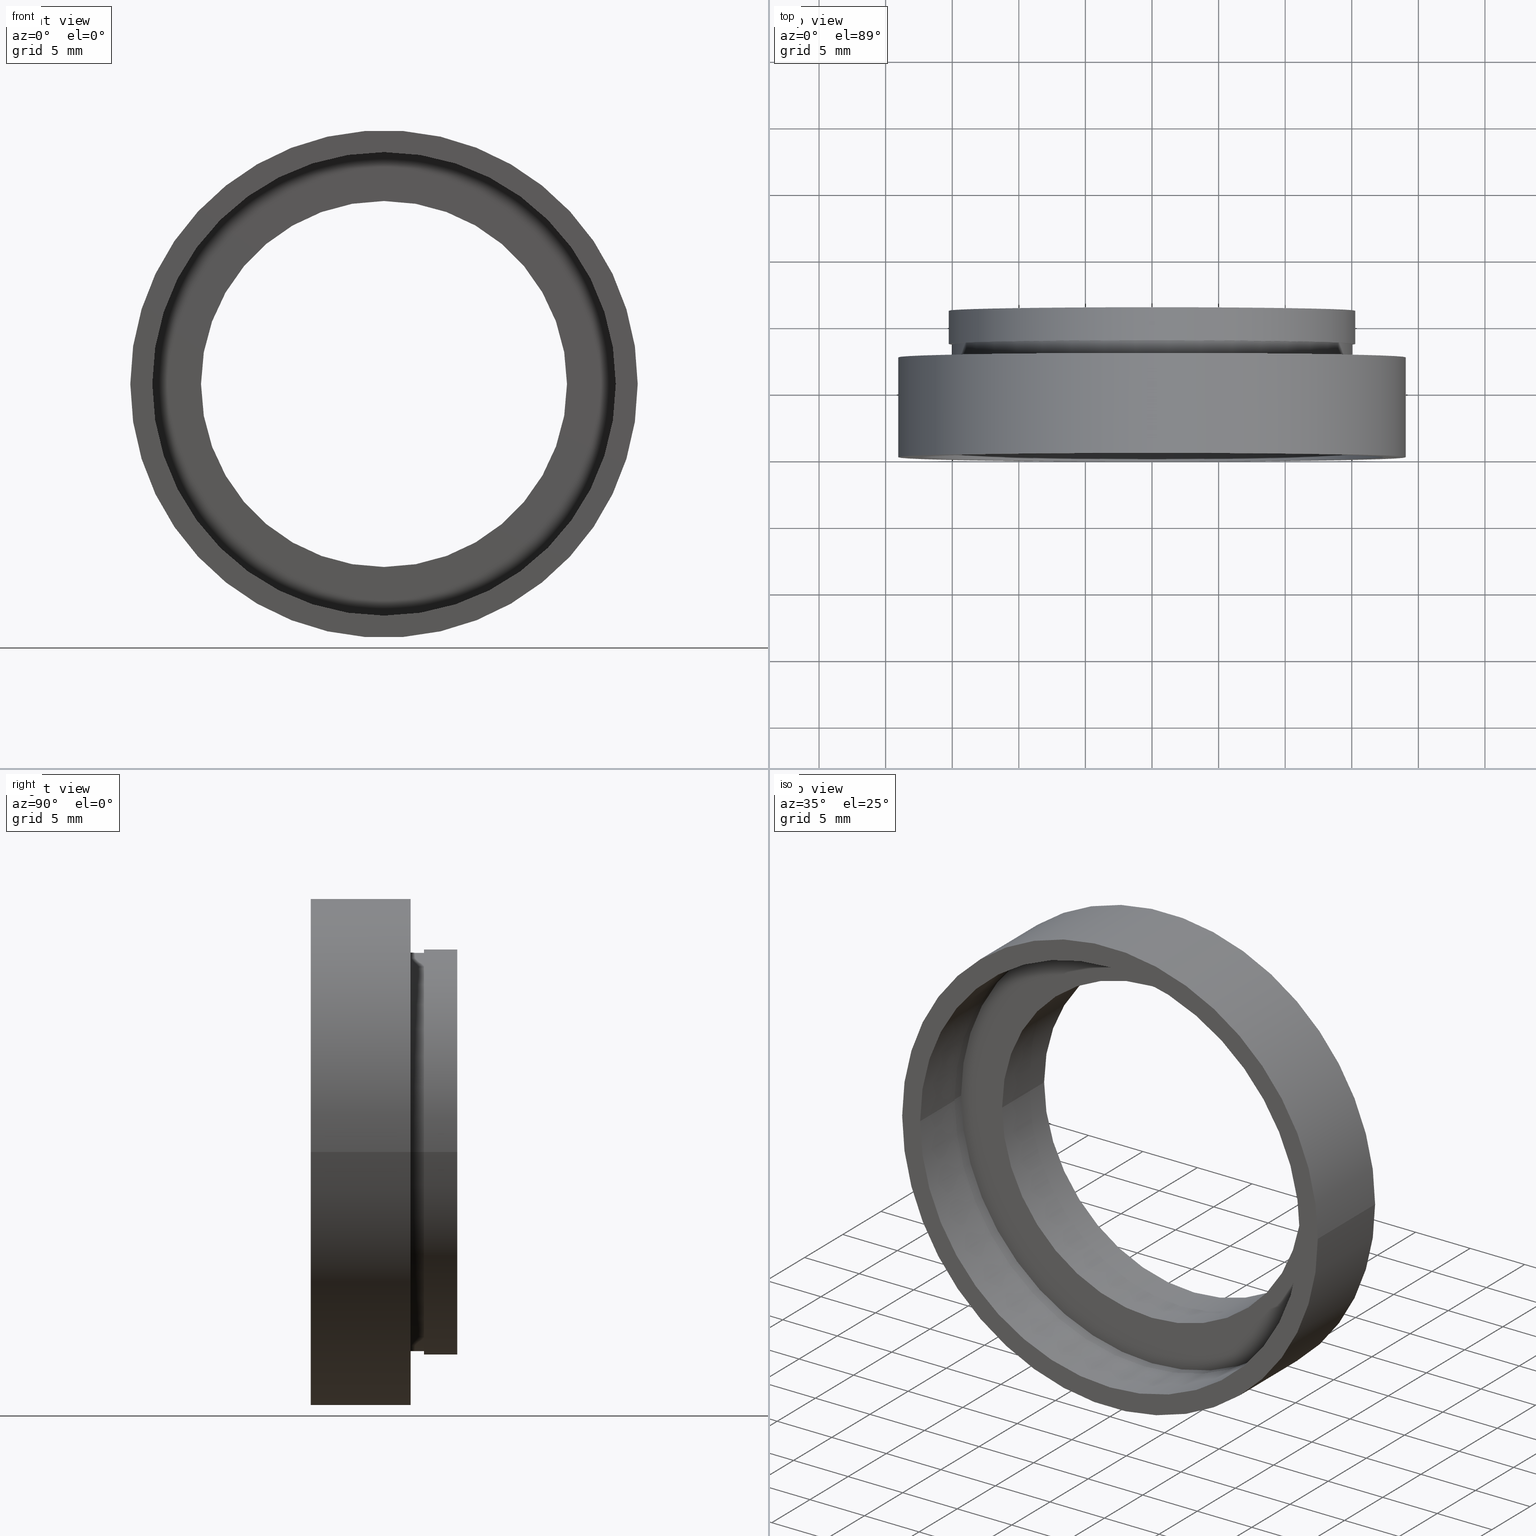
[diagram: canonical four-view strip — front | top / right | iso, engineering-drawing reading convention]
A machine part, canonical four-view strip (front | top / right | iso — engineering-drawing reading convention). The complete STEP part file that produces these views, byte-faithful:
ISO-10303-21;
HEADER;
FILE_DESCRIPTION (( 'STEP AP214' ),
    '1' );
FILE_NAME ('504102.STEP',
    '2019-10-09T07:29:24',
    ( '' ),
    ( '' ),
    'SwSTEP 2.0',
    'SolidWorks 2016',
    '' );
FILE_SCHEMA (( 'AUTOMOTIVE_DESIGN' ));
ENDSEC;

DATA;
#1 = EDGE_CURVE ( 'NONE', #369, #468, #57, .T. ) ;
#2 = ORIENTED_EDGE ( 'NONE', *, *, #340, .T. ) ;
#3 = CARTESIAN_POINT ( 'NONE',  ( -17.39999999999999500, -5.600332382470004300E-015, 0.0000000000000000000 ) ) ;
#4 = EDGE_CURVE ( 'NONE', #586, #96, #182, .T. ) ;
#5 = DIRECTION ( 'NONE',  ( -1.000000000000000000, -1.821231995776175700E-016, 0.0000000000000000000 ) ) ;
#6 =( LENGTH_UNIT ( ) NAMED_UNIT ( * ) SI_UNIT ( .MILLI., .METRE. ) );
#7 = MECHANICAL_DESIGN_GEOMETRIC_PRESENTATION_REPRESENTATION (  '', ( #81 ), #228 ) ;
#8 =( GEOMETRIC_REPRESENTATION_CONTEXT ( 3 ) GLOBAL_UNCERTAINTY_ASSIGNED_CONTEXT ( ( #527 ) ) GLOBAL_UNIT_ASSIGNED_CONTEXT ( ( #193, #499, #506 ) ) REPRESENTATION_CONTEXT ( 'NONE', 'WORKASPACE' ) );
#9 = CARTESIAN_POINT ( 'NONE',  ( 15.00000000000000000, 16.88601823708208000, 1.836970198721029600E-015 ) ) ;
#10 = DIRECTION ( 'NONE',  ( -1.224646799147351000E-016, 1.000000000000000000, -0.0000000000000000000 ) ) ;
#11 = EDGE_LOOP ( 'NONE', ( #2, #434 ) ) ;
#12 = DIRECTION ( 'NONE',  ( -1.224646799147351000E-016, 1.000000000000000000, -0.0000000000000000000 ) ) ;
#13 = FILL_AREA_STYLE ('',( #114 ) ) ;
#14 = ORIENTED_EDGE ( 'NONE', *, *, #567, .T. ) ;
#15 = FILL_AREA_STYLE_COLOUR ( '', #554 ) ;
#16 = FILL_AREA_STYLE_COLOUR ( '', #509 ) ;
#17 = EDGE_CURVE ( 'NONE', #467, #468, #535, .T. ) ;
#18 = CARTESIAN_POINT ( 'NONE',  ( 19.05000000000000100, -8.225062277234863800E-016, 0.0000000000000000000 ) ) ;
#19 = DIRECTION ( 'NONE',  ( -1.224646799147351000E-016, 1.000000000000000000, -0.0000000000000000000 ) ) ;
#20 = ORIENTED_EDGE ( 'NONE', *, *, #609, .T. ) ;
#21 = PRESENTATION_STYLE_ASSIGNMENT (( #574 ) ) ;
#22 = CIRCLE ( 'NONE', #483, 19.04999999999999700 ) ;
#23 = SURFACE_SIDE_STYLE ('',( #349 ) ) ;
#24 = DIRECTION ( 'NONE',  ( -1.224646799147351000E-016, 1.000000000000000000, -0.0000000000000000000 ) ) ;
#25 = ORIENTED_EDGE ( 'NONE', *, *, #514, .F. ) ;
#26 =( GEOMETRIC_REPRESENTATION_CONTEXT ( 3 ) GLOBAL_UNCERTAINTY_ASSIGNED_CONTEXT ( ( #575 ) ) GLOBAL_UNIT_ASSIGNED_CONTEXT ( ( #177, #548, #36 ) ) REPRESENTATION_CONTEXT ( 'NONE', 'WORKASPACE' ) );
#27 = FACE_OUTER_BOUND ( 'NONE', #144, .T. ) ;
#28 = DIRECTION ( 'NONE',  ( -1.000000000000000000, -9.969675149291993300E-017, 0.0000000000000000000 ) ) ;
#29 = ADVANCED_FACE ( 'NONE', ( #553 ), #296, .T. ) ;
#30 = CARTESIAN_POINT ( 'NONE',  ( 1.026991039163387900E-015, 8.499999999999996400, 0.0000000000000000000 ) ) ;
#31 = CARTESIAN_POINT ( 'NONE',  ( 0.0000000000000000000, 16.88601823708207700, 0.0000000000000000000 ) ) ;
#32 = ORIENTED_EDGE ( 'NONE', *, *, #473, .F. ) ;
#33 = EDGE_CURVE ( 'NONE', #360, #131, #282, .T. ) ;
#34 = DIRECTION ( 'NONE',  ( -1.224646799147351000E-016, 1.000000000000000000, -0.0000000000000000000 ) ) ;
#35 = CYLINDRICAL_SURFACE ( 'NONE', #520, 15.26000000000000000 ) ;
#36 =( NAMED_UNIT ( * ) SI_UNIT ( $, .STERADIAN. ) SOLID_ANGLE_UNIT ( ) );
#37 = PRESENTATION_LAYER_ASSIGNMENT (  '', '', ( #136 ) ) ;
#38 = EDGE_LOOP ( 'NONE', ( #225, #363, #254, #321 ) ) ;
#39 = DIRECTION ( 'NONE',  ( -1.224646799147351000E-016, 1.000000000000000000, -0.0000000000000000000 ) ) ;
#40 = PRODUCT_DEFINITION ( 'δ֪', '', #71, #238 ) ;
#41 = PRESENTATION_STYLE_ASSIGNMENT (( #573 ) ) ;
#42 = EDGE_LOOP ( 'NONE', ( #332, #455 ) ) ;
#43 = EDGE_CURVE ( 'NONE', #586, #600, #22, .T. ) ;
#44 = VECTOR ( 'NONE', #512, 1000.000000000000000 ) ;
#45 = EDGE_CURVE ( 'NONE', #407, #531, #417, .T. ) ;
#46 = CLOSED_SHELL ( 'NONE', ( #29, #603, #262, #504, #569, #54, #139, #279, #414, #541, #486, #449, #596, #463, #352, #102, #325, #398 ) ) ;
#47 = EDGE_LOOP ( 'NONE', ( #415, #605 ) ) ;
#48 = CYLINDRICAL_SURFACE ( 'NONE', #552, 17.50000000000000000 ) ;
#49 = CARTESIAN_POINT ( 'NONE',  ( -15.25999999999999800, 8.499999999999994700, 0.0000000000000000000 ) ) ;
#50 = UNCERTAINTY_MEASURE_WITH_UNIT (LENGTH_MEASURE( 1.000000000000000100E-005 ), #121, 'distance_accuracy_value', 'NONE');
#51 = ORIENTED_EDGE ( 'NONE', *, *, #45, .F. ) ;
#52 = FILL_AREA_STYLE_COLOUR ( '', #436 ) ;
#53 = CYLINDRICAL_SURFACE ( 'NONE', #65, 13.74000000000000200 ) ;
#54 = ADVANCED_FACE ( 'NONE', ( #55 ), #222, .F. ) ;
#55 = FACE_OUTER_BOUND ( 'NONE', #491, .T. ) ;
#56 = PLANE ( 'NONE',  #83 ) ;
#57 = CIRCLE ( 'NONE', #426, 15.00000000000000000 ) ;
#58 = CARTESIAN_POINT ( 'NONE',  ( 1.026991039163387900E-015, 8.499999999999996400, 0.0000000000000000000 ) ) ;
#59 = CIRCLE ( 'NONE', #134, 17.50000000000000000 ) ;
#60 =( LENGTH_UNIT ( ) NAMED_UNIT ( * ) SI_UNIT ( .MILLI., .METRE. ) );
#61 = VECTOR ( 'NONE', #347, 1000.000000000000000 ) ;
#62 = EDGE_CURVE ( 'NONE', #295, #536, #461, .T. ) ;
#63 = CARTESIAN_POINT ( 'NONE',  ( 13.74000000000000200, 16.88601823708207700, 1.682664702028463500E-015 ) ) ;
#64 = DIRECTION ( 'NONE',  ( -1.224646799147351000E-016, 1.000000000000000000, -0.0000000000000000000 ) ) ;
#65 = AXIS2_PLACEMENT_3D ( 'NONE', #237, #281, #365 ) ;
#66 = DIRECTION ( 'NONE',  ( -1.224646799147351000E-016, 1.000000000000000000, -0.0000000000000000000 ) ) ;
#67 = ORIENTED_EDGE ( 'NONE', *, *, #448, .F. ) ;
#68 = ORIENTED_EDGE ( 'NONE', *, *, #485, .F. ) ;
#69 = CIRCLE ( 'NONE', #397, 17.40000000000000200 ) ;
#70 = CARTESIAN_POINT ( 'NONE',  ( 7.208293393765500500E-016, 10.99999999999999800, 0.0000000000000000000 ) ) ;
#71 = PRODUCT_DEFINITION_FORMATION_WITH_SPECIFIED_SOURCE ( '�κ�', '', #618, .NOT_KNOWN. ) ;
#72 = ORIENTED_EDGE ( 'NONE', *, *, #171, .T. ) ;
#73 = DIRECTION ( 'NONE',  ( -1.224646799147351000E-016, 1.000000000000000000, -0.0000000000000000000 ) ) ;
#74 = UNCERTAINTY_MEASURE_WITH_UNIT (LENGTH_MEASURE( 1.000000000000000100E-005 ), #306, 'distance_accuracy_value', 'NONE');
#75 = CARTESIAN_POINT ( 'NONE',  ( 2.067940818438636500E-015, -3.469446951953614200E-015, 0.0000000000000000000 ) ) ;
#76 = AXIS2_PLACEMENT_3D ( 'NONE', #18, #343, #167 ) ;
#77 = PRESENTATION_STYLE_ASSIGNMENT (( #116 ) ) ;
#78 = DIRECTION ( 'NONE',  ( -1.224646799147351000E-016, 1.000000000000000000, -0.0000000000000000000 ) ) ;
#79 = EDGE_CURVE ( 'NONE', #467, #403, #608, .T. ) ;
#80 = EDGE_LOOP ( 'NONE', ( #199, #380 ) ) ;
#81 = STYLED_ITEM ( 'NONE', ( #41 ), #54 ) ;
#82 = DIRECTION ( 'NONE',  ( -1.000000000000000000, -9.912705577010326800E-017, 0.0000000000000000000 ) ) ;
#83 = AXIS2_PLACEMENT_3D ( 'NONE', #364, #93, #564 ) ;
#84 = CARTESIAN_POINT ( 'NONE',  ( 17.50000000000000000, 5.500000000000000000, 2.143131898507868200E-015 ) ) ;
#85 = APPLICATION_PROTOCOL_DEFINITION ( 'draft international standard', 'automotive_design', 1998, #216 ) ;
#86 = ORIENTED_EDGE ( 'NONE', *, *, #557, .T. ) ;
#87 = ORIENTED_EDGE ( 'NONE', *, *, #17, .T. ) ;
#88 = FACE_OUTER_BOUND ( 'NONE', #11, .T. ) ;
#89 = CARTESIAN_POINT ( 'NONE',  ( -13.74000000000000200, 16.88601823708207700, 0.0000000000000000000 ) ) ;
#90 = VECTOR ( 'NONE', #64, 1000.000000000000000 ) ;
#91 = CIRCLE ( 'NONE', #355, 19.05000000000000100 ) ;
#92 =( GEOMETRIC_REPRESENTATION_CONTEXT ( 3 ) GLOBAL_UNCERTAINTY_ASSIGNED_CONTEXT ( ( #412 ) ) GLOBAL_UNIT_ASSIGNED_CONTEXT ( ( #6, #292, #516 ) ) REPRESENTATION_CONTEXT ( 'NONE', 'WORKASPACE' ) );
#93 = DIRECTION ( 'NONE',  ( -1.224646799147351000E-016, 1.000000000000000000, 0.0000000000000000000 ) ) ;
#94 = EDGE_CURVE ( 'NONE', #403, #369, #127, .T. ) ;
#95 = CARTESIAN_POINT ( 'NONE',  ( 1.394385078907593000E-015, 5.499999999999998200, 0.0000000000000000000 ) ) ;
#96 = VERTEX_POINT ( 'NONE', #148 ) ;
#97 = EDGE_LOOP ( 'NONE', ( #435, #268, #112, #51 ) ) ;
#98 = DIRECTION ( 'NONE',  ( -1.224646799147351000E-016, 1.000000000000000000, -0.0000000000000000000 ) ) ;
#99 = AXIS2_PLACEMENT_3D ( 'NONE', #597, #253, #537 ) ;
#100 = DIRECTION ( 'NONE',  ( 1.000000000000000000, 1.224646799147351000E-016, 0.0000000000000000000 ) ) ;
#101 = PRESENTATION_STYLE_ASSIGNMENT (( #472 ) ) ;
#102 = ADVANCED_FACE ( 'NONE', ( #316 ), #542, .T. ) ;
#103 = AXIS2_PLACEMENT_3D ( 'NONE', #212, #299, #387 ) ;
#104 = DIRECTION ( 'NONE',  ( -1.224646799147351000E-016, 1.000000000000000000, -0.0000000000000000000 ) ) ;
#105 = CARTESIAN_POINT ( 'NONE',  ( 0.0000000000000000000, 16.88601823708207700, 0.0000000000000000000 ) ) ;
#106 =( NAMED_UNIT ( * ) SI_UNIT ( $, .STERADIAN. ) SOLID_ANGLE_UNIT ( ) );
#107 = CARTESIAN_POINT ( 'NONE',  ( -15.26000000000000000, 16.88601823708207300, 0.0000000000000000000 ) ) ;
#108 = EDGE_LOOP ( 'NONE', ( #86, #205 ) ) ;
#109 = CARTESIAN_POINT ( 'NONE',  ( 0.0000000000000000000, 16.88601823708207700, 0.0000000000000000000 ) ) ;
#110 = EDGE_CURVE ( 'NONE', #132, #407, #169, .T. ) ;
#111 =( GEOMETRIC_REPRESENTATION_CONTEXT ( 3 ) GLOBAL_UNCERTAINTY_ASSIGNED_CONTEXT ( ( #367 ) ) GLOBAL_UNIT_ASSIGNED_CONTEXT ( ( #386, #119, #297 ) ) REPRESENTATION_CONTEXT ( 'NONE', 'WORKASPACE' ) );
#112 = ORIENTED_EDGE ( 'NONE', *, *, #485, .T. ) ;
#113 = DIRECTION ( 'NONE',  ( -1.224646799147351000E-016, 1.000000000000000000, -0.0000000000000000000 ) ) ;
#114 = FILL_AREA_STYLE_COLOUR ( '', #622 ) ;
#115 = VECTOR ( 'NONE', #73, 1000.000000000000000 ) ;
#116 = SURFACE_STYLE_USAGE ( .BOTH. , #23 ) ;
#117 = DIRECTION ( 'NONE',  ( -1.000000000000000000, -1.982541115402065400E-016, 0.0000000000000000000 ) ) ;
#118 = FACE_OUTER_BOUND ( 'NONE', #274, .T. ) ;
#119 =( NAMED_UNIT ( * ) PLANE_ANGLE_UNIT ( ) SI_UNIT ( $, .RADIAN. ) );
#120 = CARTESIAN_POINT ( 'NONE',  ( 1.394385078907593000E-015, 5.499999999999998200, 0.0000000000000000000 ) ) ;
#121 =( LENGTH_UNIT ( ) NAMED_UNIT ( * ) SI_UNIT ( .MILLI., .METRE. ) );
#122 = VERTEX_POINT ( 'NONE', #286 ) ;
#123 = LINE ( 'NONE', #176, #250 ) ;
#124 =( NAMED_UNIT ( * ) SI_UNIT ( $, .STERADIAN. ) SOLID_ANGLE_UNIT ( ) );
#125 = ORIENTED_EDGE ( 'NONE', *, *, #340, .F. ) ;
#126 = EDGE_CURVE ( 'NONE', #615, #372, #59, .T. ) ;
#127 = LINE ( 'NONE', #9, #186 ) ;
#128 = AXIS2_PLACEMENT_3D ( 'NONE', #140, #104, #419 ) ;
#129 = CIRCLE ( 'NONE', #576, 15.26000000000000000 ) ;
#130 = AXIS2_PLACEMENT_3D ( 'NONE', #580, #382, #578 ) ;
#131 = VERTEX_POINT ( 'NONE', #3 ) ;
#132 = VERTEX_POINT ( 'NONE', #432 ) ;
#133 = FACE_OUTER_BOUND ( 'NONE', #338, .T. ) ;
#134 = AXIS2_PLACEMENT_3D ( 'NONE', #524, #246, #433 ) ;
#135 = ORIENTED_EDGE ( 'NONE', *, *, #43, .T. ) ;
#136 = STYLED_ITEM ( 'NONE', ( #532 ), #463 ) ;
#137 = ORIENTED_EDGE ( 'NONE', *, *, #33, .F. ) ;
#138 = FILL_AREA_STYLE ('',( #52 ) ) ;
#139 = ADVANCED_FACE ( 'NONE', ( #396, #273 ), #389, .F. ) ;
#140 = CARTESIAN_POINT ( 'NONE',  ( 1.026991039163387900E-015, 8.499999999999996400, 0.0000000000000000000 ) ) ;
#141 = ORIENTED_EDGE ( 'NONE', *, *, #582, .T. ) ;
#142 = FACE_OUTER_BOUND ( 'NONE', #496, .T. ) ;
#143 = CARTESIAN_POINT ( 'NONE',  ( 15.00000000000000200, 7.500000000000000000, 1.836970198721029600E-015 ) ) ;
#144 = EDGE_LOOP ( 'NONE', ( #25, #391 ) ) ;
#145 = CIRCLE ( 'NONE', #194, 17.39999999999999900 ) ;
#146 = DIRECTION ( 'NONE',  ( -1.224646799147351000E-016, 1.000000000000000000, -0.0000000000000000000 ) ) ;
#147 = AXIS2_PLACEMENT_3D ( 'NONE', #602, #447, #174 ) ;
#148 = CARTESIAN_POINT ( 'NONE',  ( -19.05000000000000100, 7.499999999999995600, 0.0000000000000000000 ) ) ;
#149 = DIRECTION ( 'NONE',  ( -1.224646799147351000E-016, 1.000000000000000000, 0.0000000000000000000 ) ) ;
#150 = DIRECTION ( 'NONE',  ( -1.224646799147351000E-016, 1.000000000000000000, -0.0000000000000000000 ) ) ;
#151 = DIRECTION ( 'NONE',  ( -1.000000000000000000, -2.273556325002368600E-016, 0.0000000000000000000 ) ) ;
#152 = EDGE_LOOP ( 'NONE', ( #135, #14, #32, #612 ) ) ;
#153 = FILL_AREA_STYLE ('',( #287 ) ) ;
#154 = CARTESIAN_POINT ( 'NONE',  ( 2.067940818438636500E-015, -3.469446951953614200E-015, 0.0000000000000000000 ) ) ;
#155 = SURFACE_SIDE_STYLE ('',( #339 ) ) ;
#156 = DIRECTION ( 'NONE',  ( -1.224646799147351000E-016, 1.000000000000000000, -0.0000000000000000000 ) ) ;
#157 = DIRECTION ( 'NONE',  ( 1.224646799147351000E-016, -1.000000000000000000, 0.0000000000000000000 ) ) ;
#158 = MANIFOLD_SOLID_BREP ( '��ת1', #46 ) ;
#159 = ORIENTED_EDGE ( 'NONE', *, *, #33, .T. ) ;
#160 = DIRECTION ( 'NONE',  ( -1.224646799147351000E-016, 1.000000000000000000, -0.0000000000000000000 ) ) ;
#161 = CARTESIAN_POINT ( 'NONE',  ( 0.0000000000000000000, 16.88601823708207700, 0.0000000000000000000 ) ) ;
#162 = FACE_OUTER_BOUND ( 'NONE', #214, .T. ) ;
#163 = AXIS2_PLACEMENT_3D ( 'NONE', #204, #239, #522 ) ;
#164 = VECTOR ( 'NONE', #34, 1000.000000000000000 ) ;
#165 = DIRECTION ( 'NONE',  ( -1.224646799147351000E-016, 1.000000000000000000, -0.0000000000000000000 ) ) ;
#166 = FACE_OUTER_BOUND ( 'NONE', #271, .T. ) ;
#167 = DIRECTION ( 'NONE',  ( -1.000000000000000000, -1.224646799147351000E-016, 0.0000000000000000000 ) ) ;
#168 = SURFACE_STYLE_USAGE ( .BOTH. , #211 ) ;
#169 = LINE ( 'NONE', #196, #44 ) ;
#170 = DIRECTION ( 'NONE',  ( -1.224646799147351000E-016, 1.000000000000000000, -0.0000000000000000000 ) ) ;
#171 = EDGE_CURVE ( 'NONE', #245, #481, #492, .T. ) ;
#172 = DIRECTION ( 'NONE',  ( -1.224646799147351000E-016, 1.000000000000000000, -0.0000000000000000000 ) ) ;
#173 = AXIS2_PLACEMENT_3D ( 'NONE', #105, #146, #515 ) ;
#174 = DIRECTION ( 'NONE',  ( 1.000000000000000000, 0.0000000000000000000, 0.0000000000000000000 ) ) ;
#175 = CIRCLE ( 'NONE', #315, 13.74000000000000200 ) ;
#176 = CARTESIAN_POINT ( 'NONE',  ( 17.39999999999999900, 16.88601823708208000, 2.130885430516394500E-015 ) ) ;
#177 =( LENGTH_UNIT ( ) NAMED_UNIT ( * ) SI_UNIT ( .MILLI., .METRE. ) );
#178 = ORIENTED_EDGE ( 'NONE', *, *, #377, .F. ) ;
#179 = SURFACE_STYLE_USAGE ( .BOTH. , #543 ) ;
#180 = CIRCLE ( 'NONE', #128, 15.00000000000000000 ) ;
#181 = COLOUR_RGB ( '',1.000000000000000000, 1.000000000000000000, 1.000000000000000000 ) ;
#182 = LINE ( 'NONE', #446, #405 ) ;
#183 = CIRCLE ( 'NONE', #539, 13.74000000000000000 ) ;
#184 = ADVANCED_BREP_SHAPE_REPRESENTATION ( '504102', ( #158, #147 ), #406 ) ;
#185 = PRESENTATION_LAYER_ASSIGNMENT (  '', '', ( #241 ) ) ;
#186 = VECTOR ( 'NONE', #12, 1000.000000000000000 ) ;
#187 = ORIENTED_EDGE ( 'NONE', *, *, #1, .F. ) ;
#188 = FACE_OUTER_BOUND ( 'NONE', #108, .T. ) ;
#189 = CARTESIAN_POINT ( 'NONE',  ( -17.50000000000000000, 5.499999999999996400, 0.0000000000000000000 ) ) ;
#190 = ORIENTED_EDGE ( 'NONE', *, *, #613, .F. ) ;
#191 = CARTESIAN_POINT ( 'NONE',  ( 1.516849758822328100E-015, 4.499999999999999100, 0.0000000000000000000 ) ) ;
#192 = ORIENTED_EDGE ( 'NONE', *, *, #218, .T. ) ;
#193 =( LENGTH_UNIT ( ) NAMED_UNIT ( * ) SI_UNIT ( .MILLI., .METRE. ) );
#194 = AXIS2_PLACEMENT_3D ( 'NONE', #198, #10, #335 ) ;
#195 = CARTESIAN_POINT ( 'NONE',  ( 1.516849758822328100E-015, 4.499999999999999100, 0.0000000000000000000 ) ) ;
#196 = CARTESIAN_POINT ( 'NONE',  ( 15.26000000000000000, 16.88601823708208000, 1.868811015498860900E-015 ) ) ;
#197 = DIRECTION ( 'NONE',  ( -1.224646799147351000E-016, 1.000000000000000000, -0.0000000000000000000 ) ) ;
#198 = CARTESIAN_POINT ( 'NONE',  ( 2.067940818438636500E-015, -3.469446951953614200E-015, 0.0000000000000000000 ) ) ;
#199 = ORIENTED_EDGE ( 'NONE', *, *, #559, .F. ) ;
#200 = STYLED_ITEM ( 'NONE', ( #356 ), #158 ) ;
#201 = MECHANICAL_DESIGN_GEOMETRIC_PRESENTATION_REPRESENTATION (  '', ( #136 ), #427 ) ;
#202 = DIRECTION ( 'NONE',  ( -1.000000000000000000, -1.224646799147351000E-016, 0.0000000000000000000 ) ) ;
#203 = CARTESIAN_POINT ( 'NONE',  ( 1.516849758822328100E-015, 4.499999999999999100, 0.0000000000000000000 ) ) ;
#204 = CARTESIAN_POINT ( 'NONE',  ( 0.0000000000000000000, 16.88601823708207700, 0.0000000000000000000 ) ) ;
#205 = ORIENTED_EDGE ( 'NONE', *, *, #45, .T. ) ;
#206 = ORIENTED_EDGE ( 'NONE', *, *, #94, .F. ) ;
#207 = CARTESIAN_POINT ( 'NONE',  ( 0.0000000000000000000, 16.88601823708207700, 0.0000000000000000000 ) ) ;
#208 = DIRECTION ( 'NONE',  ( 1.000000000000000000, 1.224646799147351000E-016, 0.0000000000000000000 ) ) ;
#209 = FILL_AREA_STYLE ('',( #437 ) ) ;
#210 = CYLINDRICAL_SURFACE ( 'NONE', #163, 17.50000000000000000 ) ;
#211 = SURFACE_SIDE_STYLE ('',( #518 ) ) ;
#212 = CARTESIAN_POINT ( 'NONE',  ( 1.149455719078122700E-015, 7.499999999999998200, 0.0000000000000000000 ) ) ;
#213 = AXIS2_PLACEMENT_3D ( 'NONE', #267, #606, #82 ) ;
#214 = EDGE_LOOP ( 'NONE', ( #500, #402, #261, #192 ) ) ;
#215 = FILL_AREA_STYLE_COLOUR ( '', #303 ) ;
#216 = APPLICATION_CONTEXT ( 'automotive_design' ) ;
#217 = DIRECTION ( 'NONE',  ( -1.224646799147351000E-016, 1.000000000000000000, -0.0000000000000000000 ) ) ;
#218 = EDGE_CURVE ( 'NONE', #451, #536, #264, .T. ) ;
#219 = ORIENTED_EDGE ( 'NONE', *, *, #583, .T. ) ;
#220 = EDGE_LOOP ( 'NONE', ( #508, #308 ) ) ;
#221 = DIRECTION ( 'NONE',  ( -1.000000000000000000, -1.262535280914706900E-016, 0.0000000000000000000 ) ) ;
#222 = CYLINDRICAL_SURFACE ( 'NONE', #331, 17.39999999999999900 ) ;
#223 = FACE_OUTER_BOUND ( 'NONE', #240, .T. ) ;
#224 = AXIS2_PLACEMENT_3D ( 'NONE', #120, #66, #252 ) ;
#225 = ORIENTED_EDGE ( 'NONE', *, *, #599, .F. ) ;
#226 = CYLINDRICAL_SURFACE ( 'NONE', #503, 15.00000000000000000 ) ;
#227 = EDGE_CURVE ( 'NONE', #132, #378, #558, .T. ) ;
#228 =( GEOMETRIC_REPRESENTATION_CONTEXT ( 3 ) GLOBAL_UNCERTAINTY_ASSIGNED_CONTEXT ( ( #607 ) ) GLOBAL_UNIT_ASSIGNED_CONTEXT ( ( #60, #579, #375 ) ) REPRESENTATION_CONTEXT ( 'NONE', 'WORKASPACE' ) );
#229 = CARTESIAN_POINT ( 'NONE',  ( 15.00000000000000200, 7.500000000000000000, 0.0000000000000000000 ) ) ;
#230 = AXIS2_PLACEMENT_3D ( 'NONE', #568, #277, #278 ) ;
#231 = EDGE_LOOP ( 'NONE', ( #350, #323 ) ) ;
#232 = VECTOR ( 'NONE', #150, 1000.000000000000000 ) ;
#233 = DIRECTION ( 'NONE',  ( -1.000000000000000000, -9.912705577010326800E-017, 0.0000000000000000000 ) ) ;
#234 = SURFACE_SIDE_STYLE ('',( #589 ) ) ;
#235 = DIRECTION ( 'NONE',  ( -1.224646799147351000E-016, 1.000000000000000000, -0.0000000000000000000 ) ) ;
#236 = EDGE_LOOP ( 'NONE', ( #561, #565, #333, #68 ) ) ;
#237 = CARTESIAN_POINT ( 'NONE',  ( 0.0000000000000000000, 16.88601823708207700, 0.0000000000000000000 ) ) ;
#238 = PRODUCT_DEFINITION_CONTEXT ( 'detailed design', #216, 'design' ) ;
#239 = DIRECTION ( 'NONE',  ( -1.224646799147351000E-016, 1.000000000000000000, -0.0000000000000000000 ) ) ;
#240 = EDGE_LOOP ( 'NONE', ( #430, #125, #219, #457 ) ) ;
#241 = STYLED_ITEM ( 'NONE', ( #101 ), #504 ) ;
#242 = FILL_AREA_STYLE ('',( #577 ) ) ;
#243 = DIRECTION ( 'NONE',  ( -1.000000000000000000, -1.224646799147351000E-016, 0.0000000000000000000 ) ) ;
#244 = CARTESIAN_POINT ( 'NONE',  ( -17.40000000000000200, 4.499999999999997300, 0.0000000000000000000 ) ) ;
#245 = VERTEX_POINT ( 'NONE', #251 ) ;
#246 = DIRECTION ( 'NONE',  ( -1.224646799147351000E-016, 1.000000000000000000, -0.0000000000000000000 ) ) ;
#247 = FILL_AREA_STYLE ('',( #16 ) ) ;
#248 = CARTESIAN_POINT ( 'NONE',  ( 17.50000000000000000, 16.88601823708208000, 2.143131898507868200E-015 ) ) ;
#249 = CARTESIAN_POINT ( 'NONE',  ( 13.74000000000000200, 11.00000000000000000, 1.682664702028463500E-015 ) ) ;
#250 = VECTOR ( 'NONE', #551, 1000.000000000000000 ) ;
#251 = CARTESIAN_POINT ( 'NONE',  ( 17.40000000000000200, 4.500000000000000900, 2.130885430516394900E-015 ) ) ;
#252 = DIRECTION ( 'NONE',  ( -1.000000000000000000, -9.912705577010326800E-017, 0.0000000000000000000 ) ) ;
#253 = DIRECTION ( 'NONE',  ( -1.224646799147351000E-016, 1.000000000000000000, -0.0000000000000000000 ) ) ;
#254 = ORIENTED_EDGE ( 'NONE', *, *, #126, .T. ) ;
#255 = AXIS2_PLACEMENT_3D ( 'NONE', #75, #534, #593 ) ;
#256 = CARTESIAN_POINT ( 'NONE',  ( 19.04999999999999700, 16.88601823708208000, 2.332952152375707300E-015 ) ) ;
#257 = ORIENTED_EDGE ( 'NONE', *, *, #567, .F. ) ;
#258 = DIRECTION ( 'NONE',  ( -1.224646799147351000E-016, 1.000000000000000000, -0.0000000000000000000 ) ) ;
#259 = PRODUCT_CONTEXT ( 'NONE', #488, 'mechanical' ) ;
#260 = EDGE_CURVE ( 'NONE', #122, #615, #443, .T. ) ;
#261 = ORIENTED_EDGE ( 'NONE', *, *, #613, .T. ) ;
#262 = ADVANCED_FACE ( 'NONE', ( #312 ), #555, .T. ) ;
#263 = MECHANICAL_DESIGN_GEOMETRIC_PRESENTATION_REPRESENTATION (  '', ( #381 ), #549 ) ;
#264 = CIRCLE ( 'NONE', #517, 13.74000000000000200 ) ;
#265 = SURFACE_STYLE_FILL_AREA ( #247 ) ;
#266 = UNCERTAINTY_MEASURE_WITH_UNIT (LENGTH_MEASURE( 1.000000000000000100E-005 ), #528, 'distance_accuracy_value', 'NONE');
#267 = CARTESIAN_POINT ( 'NONE',  ( 1.516849758822328100E-015, 4.499999999999999100, 0.0000000000000000000 ) ) ;
#268 = ORIENTED_EDGE ( 'NONE', *, *, #227, .T. ) ;
#269 = CYLINDRICAL_SURFACE ( 'NONE', #230, 19.04999999999999700 ) ;
#270 = PRESENTATION_LAYER_ASSIGNMENT (  '', '', ( #200 ) ) ;
#271 = EDGE_LOOP ( 'NONE', ( #305, #284, #317, #354 ) ) ;
#272 = CIRCLE ( 'NONE', #103, 15.00000000000000000 ) ;
#273 = FACE_BOUND ( 'NONE', #493, .T. ) ;
#274 = EDGE_LOOP ( 'NONE', ( #275, #475, #141, #190 ) ) ;
#275 = ORIENTED_EDGE ( 'NONE', *, *, #614, .F. ) ;
#276 = CARTESIAN_POINT ( 'NONE',  ( 13.74000000000000200, 5.500000000000000000, 1.682664702028463500E-015 ) ) ;
#277 = DIRECTION ( 'NONE',  ( -1.224646799147351000E-016, 1.000000000000000000, -0.0000000000000000000 ) ) ;
#278 = DIRECTION ( 'NONE',  ( -1.000000000000000000, -1.821231995776175700E-016, 0.0000000000000000000 ) ) ;
#279 = ADVANCED_FACE ( 'NONE', ( #166 ), #314, .F. ) ;
#280 = FACE_BOUND ( 'NONE', #585, .T. ) ;
#281 = DIRECTION ( 'NONE',  ( -1.224646799147351000E-016, 1.000000000000000000, -0.0000000000000000000 ) ) ;
#282 = CIRCLE ( 'NONE', #456, 17.39999999999999900 ) ;
#283 = AXIS2_PLACEMENT_3D ( 'NONE', #58, #423, #289 ) ;
#284 = ORIENTED_EDGE ( 'NONE', *, *, #545, .F. ) ;
#285 = DIRECTION ( 'NONE',  ( -1.000000000000000000, -9.969675149291993300E-017, 0.0000000000000000000 ) ) ;
#286 = CARTESIAN_POINT ( 'NONE',  ( 17.50000000000000000, 4.500000000000000900, 2.143131898507868200E-015 ) ) ;
#287 = FILL_AREA_STYLE_COLOUR ( '', #181 ) ;
#288 = EDGE_CURVE ( 'NONE', #621, #96, #91, .T. ) ;
#289 = DIRECTION ( 'NONE',  ( -1.000000000000000000, -1.136778162501184300E-016, 0.0000000000000000000 ) ) ;
#290 = ORIENTED_EDGE ( 'NONE', *, *, #595, .T. ) ;
#291 = FACE_BOUND ( 'NONE', #519, .T. ) ;
#292 =( NAMED_UNIT ( * ) PLANE_ANGLE_UNIT ( ) SI_UNIT ( $, .RADIAN. ) );
#293 =( NAMED_UNIT ( * ) PLANE_ANGLE_UNIT ( ) SI_UNIT ( $, .RADIAN. ) );
#294 = DIRECTION ( 'NONE',  ( -1.224646799147351000E-016, 1.000000000000000000, -0.0000000000000000000 ) ) ;
#295 = VERTEX_POINT ( 'NONE', #276 ) ;
#296 = CYLINDRICAL_SURFACE ( 'NONE', #454, 19.04999999999999700 ) ;
#297 =( NAMED_UNIT ( * ) SI_UNIT ( $, .STERADIAN. ) SOLID_ANGLE_UNIT ( ) );
#298 = PRODUCT_RELATED_PRODUCT_CATEGORY ( 'part', '', ( #618 ) ) ;
#299 = DIRECTION ( 'NONE',  ( -1.224646799147351000E-016, 1.000000000000000000, -0.0000000000000000000 ) ) ;
#300 = EDGE_LOOP ( 'NONE', ( #206, #523, #87, #187 ) ) ;
#301 = AXIS2_PLACEMENT_3D ( 'NONE', #203, #165, #28 ) ;
#302 = PRESENTATION_STYLE_ASSIGNMENT (( #588 ) ) ;
#303 = COLOUR_RGB ( '',1.000000000000000000, 1.000000000000000000, 1.000000000000000000 ) ;
#304 = PLANE ( 'NONE',  #370 ) ;
#305 = ORIENTED_EDGE ( 'NONE', *, *, #609, .F. ) ;
#306 =( LENGTH_UNIT ( ) NAMED_UNIT ( * ) SI_UNIT ( .MILLI., .METRE. ) );
#307 = UNCERTAINTY_MEASURE_WITH_UNIT (LENGTH_MEASURE( 1.000000000000000100E-005 ), #429, 'distance_accuracy_value', 'NONE');
#308 = ORIENTED_EDGE ( 'NONE', *, *, #614, .T. ) ;
#309 = CARTESIAN_POINT ( 'NONE',  ( 19.05000000000000100, 7.500000000000000900, 2.332952152375707600E-015 ) ) ;
#310 = CIRCLE ( 'NONE', #604, 13.74000000000000000 ) ;
#311 = CARTESIAN_POINT ( 'NONE',  ( 19.05000000000000100, -1.136494799577911100E-015, 2.332952152375707600E-015 ) ) ;
#312 = FACE_OUTER_BOUND ( 'NONE', #236, .T. ) ;
#313 = FACE_OUTER_BOUND ( 'NONE', #80, .T. ) ;
#314 = CYLINDRICAL_SURFACE ( 'NONE', #99, 17.39999999999999900 ) ;
#315 = AXIS2_PLACEMENT_3D ( 'NONE', #70, #342, #348 ) ;
#316 = FACE_OUTER_BOUND ( 'NONE', #300, .T. ) ;
#317 = ORIENTED_EDGE ( 'NONE', *, *, #498, .T. ) ;
#318 = LINE ( 'NONE', #89, #511 ) ;
#319 = CARTESIAN_POINT ( 'NONE',  ( 15.26000000000000000, 11.00000000000000000, 1.868811015498860900E-015 ) ) ;
#320 = AXIS2_PLACEMENT_3D ( 'NONE', #207, #160, #480 ) ;
#321 = ORIENTED_EDGE ( 'NONE', *, *, #583, .F. ) ;
#322 = DIRECTION ( 'NONE',  ( -1.000000000000000000, -1.262535280914706900E-016, 0.0000000000000000000 ) ) ;
#323 = ORIENTED_EDGE ( 'NONE', *, *, #595, .F. ) ;
#324 = DIRECTION ( 'NONE',  ( 1.224646799147351000E-016, -1.000000000000000000, 0.0000000000000000000 ) ) ;
#325 = ADVANCED_FACE ( 'NONE', ( #393, #470 ), #462, .F. ) ;
#326 = FACE_BOUND ( 'NONE', #42, .T. ) ;
#327 = CARTESIAN_POINT ( 'NONE',  ( 17.40000000000000200, -1.338561521437223600E-015, 2.130885430516394900E-015 ) ) ;
#328 = STYLED_ITEM ( 'NONE', ( #77 ), #262 ) ;
#329 = DIRECTION ( 'NONE',  ( -1.000000000000000000, -1.993935029858399100E-016, 0.0000000000000000000 ) ) ;
#330 = SURFACE_STYLE_USAGE ( .BOTH. , #155 ) ;
#331 = AXIS2_PLACEMENT_3D ( 'NONE', #379, #507, #329 ) ;
#332 = ORIENTED_EDGE ( 'NONE', *, *, #377, .T. ) ;
#333 = ORIENTED_EDGE ( 'NONE', *, *, #557, .F. ) ;
#334 =( NAMED_UNIT ( * ) PLANE_ANGLE_UNIT ( ) SI_UNIT ( $, .RADIAN. ) );
#335 = DIRECTION ( 'NONE',  ( -1.000000000000000000, -1.224646799147351000E-016, 0.0000000000000000000 ) ) ;
#336 = DIRECTION ( 'NONE',  ( -1.224646799147351000E-016, 1.000000000000000000, -0.0000000000000000000 ) ) ;
#337 = CARTESIAN_POINT ( 'NONE',  ( -14.99999999999999800, 8.499999999999994700, 0.0000000000000000000 ) ) ;
#338 = EDGE_LOOP ( 'NONE', ( #400, #489, #178, #452 ) ) ;
#339 = SURFACE_STYLE_FILL_AREA ( #13 ) ;
#340 = EDGE_CURVE ( 'NONE', #445, #122, #571, .T. ) ;
#341 = CARTESIAN_POINT ( 'NONE',  ( 1.026991039163387900E-015, 8.499999999999996400, 0.0000000000000000000 ) ) ;
#342 = DIRECTION ( 'NONE',  ( -1.224646799147351000E-016, 1.000000000000000000, -0.0000000000000000000 ) ) ;
#343 = DIRECTION ( 'NONE',  ( -1.224646799147351000E-016, 1.000000000000000000, 0.0000000000000000000 ) ) ;
#344 = CIRCLE ( 'NONE', #224, 17.50000000000000000 ) ;
#345 = CARTESIAN_POINT ( 'NONE',  ( 13.74000000000000200, 11.00000000000000000, 0.0000000000000000000 ) ) ;
#346 =( NAMED_UNIT ( * ) SI_UNIT ( $, .STERADIAN. ) SOLID_ANGLE_UNIT ( ) );
#347 = DIRECTION ( 'NONE',  ( -1.224646799147351000E-016, 1.000000000000000000, -0.0000000000000000000 ) ) ;
#348 = DIRECTION ( 'NONE',  ( -1.000000000000000000, -1.262535280914706600E-016, 0.0000000000000000000 ) ) ;
#349 = SURFACE_STYLE_FILL_AREA ( #384 ) ;
#350 = ORIENTED_EDGE ( 'NONE', *, *, #43, .F. ) ;
#351 = DIRECTION ( 'NONE',  ( -1.224646799147351000E-016, 1.000000000000000000, -0.0000000000000000000 ) ) ;
#352 = ADVANCED_FACE ( 'NONE', ( #27, #326 ), #56, .F. ) ;
#353 = CARTESIAN_POINT ( 'NONE',  ( -15.00000000000000000, 16.88601823708207300, 0.0000000000000000000 ) ) ;
#354 = ORIENTED_EDGE ( 'NONE', *, *, #448, .T. ) ;
#355 = AXIS2_PLACEMENT_3D ( 'NONE', #540, #258, #368 ) ;
#356 = PRESENTATION_STYLE_ASSIGNMENT (( #168 ) ) ;
#357 = SHAPE_DEFINITION_REPRESENTATION ( #428, #184 ) ;
#358 = ORIENTED_EDGE ( 'NONE', *, *, #288, .T. ) ;
#359 = AXIS2_PLACEMENT_3D ( 'NONE', #424, #477, #623 ) ;
#360 = VERTEX_POINT ( 'NONE', #327 ) ;
#361 = PRESENTATION_LAYER_ASSIGNMENT (  '', '', ( #81 ) ) ;
#362 = SURFACE_STYLE_FILL_AREA ( #209 ) ;
#363 = ORIENTED_EDGE ( 'NONE', *, *, #260, .T. ) ;
#364 = CARTESIAN_POINT ( 'NONE',  ( 15.26000000000000200, 8.499999999999998200, 0.0000000000000000000 ) ) ;
#365 = DIRECTION ( 'NONE',  ( -1.000000000000000000, 0.0000000000000000000, 0.0000000000000000000 ) ) ;
#366 = CYLINDRICAL_SURFACE ( 'NONE', #130, 13.74000000000000200 ) ;
#367 = UNCERTAINTY_MEASURE_WITH_UNIT (LENGTH_MEASURE( 1.000000000000000100E-005 ), #386, 'distance_accuracy_value', 'NONE');
#368 = DIRECTION ( 'NONE',  ( -1.000000000000000000, -1.365923996832131600E-016, 0.0000000000000000000 ) ) ;
#369 = VERTEX_POINT ( 'NONE', #416 ) ;
#370 = AXIS2_PLACEMENT_3D ( 'NONE', #345, #157, #208 ) ;
#371 = DIRECTION ( 'NONE',  ( -1.224646799147351000E-016, 1.000000000000000000, -0.0000000000000000000 ) ) ;
#372 = VERTEX_POINT ( 'NONE', #189 ) ;
#373 = CARTESIAN_POINT ( 'NONE',  ( 1.149455719078122700E-015, 7.499999999999998200, 0.0000000000000000000 ) ) ;
#374 = CARTESIAN_POINT ( 'NONE',  ( -13.74000000000000200, 10.99999999999999600, 0.0000000000000000000 ) ) ;
#375 =( NAMED_UNIT ( * ) SI_UNIT ( $, .STERADIAN. ) SOLID_ANGLE_UNIT ( ) );
#376 = CARTESIAN_POINT ( 'NONE',  ( -17.39999999999999900, 16.88601823708207300, 0.0000000000000000000 ) ) ;
#377 = EDGE_CURVE ( 'NONE', #468, #369, #180, .T. ) ;
#378 = VERTEX_POINT ( 'NONE', #49 ) ;
#379 = CARTESIAN_POINT ( 'NONE',  ( 0.0000000000000000000, 16.88601823708207700, 0.0000000000000000000 ) ) ;
#380 = ORIENTED_EDGE ( 'NONE', *, *, #126, .F. ) ;
#381 = STYLED_ITEM ( 'NONE', ( #302 ), #279 ) ;
#382 = DIRECTION ( 'NONE',  ( -1.224646799147351000E-016, 1.000000000000000000, -0.0000000000000000000 ) ) ;
#383 = CIRCLE ( 'NONE', #458, 19.05000000000000100 ) ;
#384 = FILL_AREA_STYLE ('',( #15 ) ) ;
#385 = CARTESIAN_POINT ( 'NONE',  ( -19.04999999999999400, -5.802399104329317500E-015, 0.0000000000000000000 ) ) ;
#386 =( LENGTH_UNIT ( ) NAMED_UNIT ( * ) SI_UNIT ( .MILLI., .METRE. ) );
#387 = DIRECTION ( 'NONE',  ( -1.000000000000000000, -1.156482317317871500E-016, 0.0000000000000000000 ) ) ;
#388 = ORIENTED_EDGE ( 'NONE', *, *, #171, .F. ) ;
#389 = PLANE ( 'NONE',  #76 ) ;
#390 =( GEOMETRIC_REPRESENTATION_CONTEXT ( 3 ) GLOBAL_UNCERTAINTY_ASSIGNED_CONTEXT ( ( #266 ) ) GLOBAL_UNIT_ASSIGNED_CONTEXT ( ( #528, #530, #346 ) ) REPRESENTATION_CONTEXT ( 'NONE', 'WORKASPACE' ) );
#391 = ORIENTED_EDGE ( 'NONE', *, *, #227, .F. ) ;
#392 = FACE_BOUND ( 'NONE', #220, .T. ) ;
#393 = FACE_BOUND ( 'NONE', #47, .T. ) ;
#394 = CARTESIAN_POINT ( 'NONE',  ( 7.208293393765500500E-016, 10.99999999999999800, 0.0000000000000000000 ) ) ;
#395 = MECHANICAL_DESIGN_GEOMETRIC_PRESENTATION_REPRESENTATION (  '', ( #200 ), #390 ) ;
#396 = FACE_OUTER_BOUND ( 'NONE', #231, .T. ) ;
#397 = AXIS2_PLACEMENT_3D ( 'NONE', #195, #501, #285 ) ;
#398 = ADVANCED_FACE ( 'NONE', ( #142 ), #269, .T. ) ;
#399 = DIRECTION ( 'NONE',  ( -1.000000000000000000, -1.156482317317871500E-016, 0.0000000000000000000 ) ) ;
#400 = ORIENTED_EDGE ( 'NONE', *, *, #79, .T. ) ;
#401 = CARTESIAN_POINT ( 'NONE',  ( 1.394385078907593000E-015, 5.499999999999998200, 0.0000000000000000000 ) ) ;
#402 = ORIENTED_EDGE ( 'NONE', *, *, #408, .F. ) ;
#403 = VERTEX_POINT ( 'NONE', #143 ) ;
#404 = SURFACE_STYLE_FILL_AREA ( #153 ) ;
#405 = VECTOR ( 'NONE', #172, 1000.000000000000000 ) ;
#406 =( GEOMETRIC_REPRESENTATION_CONTEXT ( 3 ) GLOBAL_UNCERTAINTY_ASSIGNED_CONTEXT ( ( #74 ) ) GLOBAL_UNIT_ASSIGNED_CONTEXT ( ( #306, #444, #124 ) ) REPRESENTATION_CONTEXT ( 'NONE', 'WORKASPACE' ) );
#407 = VERTEX_POINT ( 'NONE', #319 ) ;
#408 = EDGE_CURVE ( 'NONE', #418, #295, #310, .T. ) ;
#409 = LINE ( 'NONE', #256, #61 ) ;
#410 = CARTESIAN_POINT ( 'NONE',  ( -13.73999999999999800, 5.499999999999996400, 0.0000000000000000000 ) ) ;
#411 = STYLED_ITEM ( 'NONE', ( #21 ), #449 ) ;
#412 = UNCERTAINTY_MEASURE_WITH_UNIT (LENGTH_MEASURE( 1.000000000000000100E-005 ), #6, 'distance_accuracy_value', 'NONE');
#413 = PLANE ( 'NONE',  #617 ) ;
#414 = ADVANCED_FACE ( 'NONE', ( #280, #88 ), #413, .F. ) ;
#415 = ORIENTED_EDGE ( 'NONE', *, *, #79, .F. ) ;
#416 = CARTESIAN_POINT ( 'NONE',  ( 15.00000000000000200, 8.499999999999998200, 1.836970198721029600E-015 ) ) ;
#417 = CIRCLE ( 'NONE', #359, 15.26000000000000000 ) ;
#418 = VERTEX_POINT ( 'NONE', #410 ) ;
#419 = DIRECTION ( 'NONE',  ( -1.000000000000000000, -1.156482317317871500E-016, 0.0000000000000000000 ) ) ;
#420 = COLOUR_RGB ( '',1.000000000000000000, 1.000000000000000000, 1.000000000000000000 ) ;
#421 = MECHANICAL_DESIGN_GEOMETRIC_PRESENTATION_REPRESENTATION (  '', ( #328 ), #111 ) ;
#422 = DIRECTION ( 'NONE',  ( -1.000000000000000000, -1.156482317317871500E-016, 0.0000000000000000000 ) ) ;
#423 = DIRECTION ( 'NONE',  ( -1.224646799147351000E-016, 1.000000000000000000, -0.0000000000000000000 ) ) ;
#424 = CARTESIAN_POINT ( 'NONE',  ( 7.208293393765500500E-016, 10.99999999999999800, 0.0000000000000000000 ) ) ;
#425 = CARTESIAN_POINT ( 'NONE',  ( 13.74000000000000200, 5.500000000000000000, 0.0000000000000000000 ) ) ;
#426 = AXIS2_PLACEMENT_3D ( 'NONE', #30, #351, #399 ) ;
#427 =( GEOMETRIC_REPRESENTATION_CONTEXT ( 3 ) GLOBAL_UNCERTAINTY_ASSIGNED_CONTEXT ( ( #307 ) ) GLOBAL_UNIT_ASSIGNED_CONTEXT ( ( #429, #334, #106 ) ) REPRESENTATION_CONTEXT ( 'NONE', 'WORKASPACE' ) );
#428 = PRODUCT_DEFINITION_SHAPE ( 'NONE', 'NONE',  #40 ) ;
#429 =( LENGTH_UNIT ( ) NAMED_UNIT ( * ) SI_UNIT ( .MILLI., .METRE. ) );
#430 = ORIENTED_EDGE ( 'NONE', *, *, #260, .F. ) ;
#431 = CIRCLE ( 'NONE', #213, 17.50000000000000000 ) ;
#432 = CARTESIAN_POINT ( 'NONE',  ( 15.26000000000000300, 8.499999999999998200, 1.868811015498861300E-015 ) ) ;
#433 = DIRECTION ( 'NONE',  ( -1.000000000000000000, -9.912705577010326800E-017, 0.0000000000000000000 ) ) ;
#434 = ORIENTED_EDGE ( 'NONE', *, *, #599, .T. ) ;
#435 = ORIENTED_EDGE ( 'NONE', *, *, #110, .F. ) ;
#436 = COLOUR_RGB ( '',1.000000000000000000, 1.000000000000000000, 1.000000000000000000 ) ;
#437 = FILL_AREA_STYLE_COLOUR ( '', #420 ) ;
#438 = CARTESIAN_POINT ( 'NONE',  ( -17.50000000000000000, 16.88601823708207300, 0.0000000000000000000 ) ) ;
#439 = DIRECTION ( 'NONE',  ( -1.000000000000000000, -1.262535280914706600E-016, 0.0000000000000000000 ) ) ;
#440 = MECHANICAL_DESIGN_GEOMETRIC_PRESENTATION_REPRESENTATION (  '', ( #241 ), #92 ) ;
#441 = COLOUR_RGB ( '',1.000000000000000000, 1.000000000000000000, 1.000000000000000000 ) ;
#442 = DIRECTION ( 'NONE',  ( -1.000000000000000000, -1.136778162501184300E-016, 0.0000000000000000000 ) ) ;
#443 = LINE ( 'NONE', #248, #115 ) ;
#444 =( NAMED_UNIT ( * ) PLANE_ANGLE_UNIT ( ) SI_UNIT ( $, .RADIAN. ) );
#445 = VERTEX_POINT ( 'NONE', #624 ) ;
#446 = CARTESIAN_POINT ( 'NONE',  ( -19.04999999999999700, 16.88601823708207300, 0.0000000000000000000 ) ) ;
#447 = DIRECTION ( 'NONE',  ( 0.0000000000000000000, 0.0000000000000000000, 1.000000000000000000 ) ) ;
#448 = EDGE_CURVE ( 'NONE', #481, #245, #69, .T. ) ;
#449 = ADVANCED_FACE ( 'NONE', ( #162 ), #53, .F. ) ;
#450 = PRESENTATION_LAYER_ASSIGNMENT (  '', '', ( #381 ) ) ;
#451 = VERTEX_POINT ( 'NONE', #374 ) ;
#452 = ORIENTED_EDGE ( 'NONE', *, *, #17, .F. ) ;
#453 = VECTOR ( 'NONE', #479, 1000.000000000000000 ) ;
#454 = AXIS2_PLACEMENT_3D ( 'NONE', #109, #235, #5 ) ;
#455 = ORIENTED_EDGE ( 'NONE', *, *, #1, .T. ) ;
#456 = AXIS2_PLACEMENT_3D ( 'NONE', #154, #197, #521 ) ;
#457 = ORIENTED_EDGE ( 'NONE', *, *, #559, .T. ) ;
#458 = AXIS2_PLACEMENT_3D ( 'NONE', #466, #294, #529 ) ;
#459 = DIRECTION ( 'NONE',  ( 1.000000000000000000, 1.224646799147351000E-016, 0.0000000000000000000 ) ) ;
#460 = ORIENTED_EDGE ( 'NONE', *, *, #582, .F. ) ;
#461 = LINE ( 'NONE', #63, #232 ) ;
#462 = PLANE ( 'NONE',  #562 ) ;
#463 = ADVANCED_FACE ( 'NONE', ( #494 ), #35, .T. ) ;
#464 = DIRECTION ( 'NONE',  ( 1.224646799147351000E-016, -1.000000000000000000, 0.0000000000000000000 ) ) ;
#465 = AXIS2_PLACEMENT_3D ( 'NONE', #425, #149, #202 ) ;
#466 = CARTESIAN_POINT ( 'NONE',  ( 1.149455719078122700E-015, 7.499999999999998200, 0.0000000000000000000 ) ) ;
#467 = VERTEX_POINT ( 'NONE', #469 ) ;
#468 = VERTEX_POINT ( 'NONE', #337 ) ;
#469 = CARTESIAN_POINT ( 'NONE',  ( -14.99999999999999800, 7.499999999999996400, 0.0000000000000000000 ) ) ;
#470 = FACE_OUTER_BOUND ( 'NONE', #484, .T. ) ;
#471 = CARTESIAN_POINT ( 'NONE',  ( 2.067940818438636500E-015, -3.469446951953614200E-015, 0.0000000000000000000 ) ) ;
#472 = SURFACE_STYLE_USAGE ( .BOTH. , #584 ) ;
#473 = EDGE_CURVE ( 'NONE', #96, #621, #383, .T. ) ;
#474 = PLANE ( 'NONE',  #465 ) ;
#475 = ORIENTED_EDGE ( 'NONE', *, *, #62, .T. ) ;
#476 = AXIS2_PLACEMENT_3D ( 'NONE', #191, #98, #233 ) ;
#477 = DIRECTION ( 'NONE',  ( -1.224646799147351000E-016, 1.000000000000000000, -0.0000000000000000000 ) ) ;
#478 = VECTOR ( 'NONE', #525, 1000.000000000000000 ) ;
#479 = DIRECTION ( 'NONE',  ( -1.224646799147351000E-016, 1.000000000000000000, -0.0000000000000000000 ) ) ;
#480 = DIRECTION ( 'NONE',  ( -1.000000000000000000, -2.273556325002368600E-016, 0.0000000000000000000 ) ) ;
#481 = VERTEX_POINT ( 'NONE', #244 ) ;
#482 =( NAMED_UNIT ( * ) SI_UNIT ( $, .STERADIAN. ) SOLID_ANGLE_UNIT ( ) );
#483 = AXIS2_PLACEMENT_3D ( 'NONE', #471, #336, #243 ) ;
#484 = EDGE_LOOP ( 'NONE', ( #497, #358 ) ) ;
#485 = EDGE_CURVE ( 'NONE', #378, #531, #619, .T. ) ;
#486 = ADVANCED_FACE ( 'NONE', ( #313, #392 ), #474, .F. ) ;
#487 = APPLICATION_PROTOCOL_DEFINITION ( 'draft international standard', 'automotive_design', 1998, #488 ) ;
#488 = APPLICATION_CONTEXT ( 'automotive_design' ) ;
#489 = ORIENTED_EDGE ( 'NONE', *, *, #94, .T. ) ;
#490 = FILL_AREA_STYLE ('',( #215 ) ) ;
#491 = EDGE_LOOP ( 'NONE', ( #137, #20, #72, #544 ) ) ;
#492 = CIRCLE ( 'NONE', #301, 17.40000000000000200 ) ;
#493 = EDGE_LOOP ( 'NONE', ( #550, #159 ) ) ;
#494 = FACE_OUTER_BOUND ( 'NONE', #97, .T. ) ;
#495 = STYLED_ITEM ( 'NONE', ( #538 ), #184 ) ;
#496 = EDGE_LOOP ( 'NONE', ( #257, #290, #505, #598 ) ) ;
#497 = ORIENTED_EDGE ( 'NONE', *, *, #473, .T. ) ;
#498 = EDGE_CURVE ( 'NONE', #131, #481, #570, .T. ) ;
#499 =( NAMED_UNIT ( * ) PLANE_ANGLE_UNIT ( ) SI_UNIT ( $, .RADIAN. ) );
#500 = ORIENTED_EDGE ( 'NONE', *, *, #62, .F. ) ;
#501 = DIRECTION ( 'NONE',  ( -1.224646799147351000E-016, 1.000000000000000000, -0.0000000000000000000 ) ) ;
#502 = PRESENTATION_LAYER_ASSIGNMENT (  '', '', ( #411 ) ) ;
#503 = AXIS2_PLACEMENT_3D ( 'NONE', #31, #217, #610 ) ;
#504 = ADVANCED_FACE ( 'NONE', ( #118 ), #366, .F. ) ;
#505 = ORIENTED_EDGE ( 'NONE', *, *, #4, .T. ) ;
#506 =( NAMED_UNIT ( * ) SI_UNIT ( $, .STERADIAN. ) SOLID_ANGLE_UNIT ( ) );
#507 = DIRECTION ( 'NONE',  ( -1.224646799147351000E-016, 1.000000000000000000, -0.0000000000000000000 ) ) ;
#508 = ORIENTED_EDGE ( 'NONE', *, *, #408, .T. ) ;
#509 = COLOUR_RGB ( '',1.000000000000000000, 1.000000000000000000, 1.000000000000000000 ) ;
#510 = AXIS2_PLACEMENT_3D ( 'NONE', #373, #113, #422 ) ;
#511 = VECTOR ( 'NONE', #39, 1000.000000000000000 ) ;
#512 = DIRECTION ( 'NONE',  ( -1.224646799147351000E-016, 1.000000000000000000, -0.0000000000000000000 ) ) ;
#513 = CARTESIAN_POINT ( 'NONE',  ( -15.26000000000000000, 10.99999999999999600, 0.0000000000000000000 ) ) ;
#514 = EDGE_CURVE ( 'NONE', #378, #132, #591, .T. ) ;
#515 = DIRECTION ( 'NONE',  ( -1.000000000000000000, -2.312964634635743000E-016, 0.0000000000000000000 ) ) ;
#516 =( NAMED_UNIT ( * ) SI_UNIT ( $, .STERADIAN. ) SOLID_ANGLE_UNIT ( ) );
#517 = AXIS2_PLACEMENT_3D ( 'NONE', #394, #156, #439 ) ;
#518 = SURFACE_STYLE_FILL_AREA ( #242 ) ;
#519 = EDGE_LOOP ( 'NONE', ( #566, #460 ) ) ;
#520 = AXIS2_PLACEMENT_3D ( 'NONE', #616, #371, #151 ) ;
#521 = DIRECTION ( 'NONE',  ( -1.000000000000000000, -1.224646799147351000E-016, 0.0000000000000000000 ) ) ;
#522 = DIRECTION ( 'NONE',  ( -1.000000000000000000, -1.982541115402065400E-016, 0.0000000000000000000 ) ) ;
#523 = ORIENTED_EDGE ( 'NONE', *, *, #546, .T. ) ;
#524 = CARTESIAN_POINT ( 'NONE',  ( 1.394385078907593000E-015, 5.499999999999998200, 0.0000000000000000000 ) ) ;
#525 = DIRECTION ( 'NONE',  ( -1.224646799147351000E-016, 1.000000000000000000, -0.0000000000000000000 ) ) ;
#526 = FACE_OUTER_BOUND ( 'NONE', #38, .T. ) ;
#527 = UNCERTAINTY_MEASURE_WITH_UNIT (LENGTH_MEASURE( 1.000000000000000100E-005 ), #193, 'distance_accuracy_value', 'NONE');
#528 =( LENGTH_UNIT ( ) NAMED_UNIT ( * ) SI_UNIT ( .MILLI., .METRE. ) );
#529 = DIRECTION ( 'NONE',  ( -1.000000000000000000, -1.365923996832131600E-016, 0.0000000000000000000 ) ) ;
#530 =( NAMED_UNIT ( * ) PLANE_ANGLE_UNIT ( ) SI_UNIT ( $, .RADIAN. ) );
#531 = VERTEX_POINT ( 'NONE', #513 ) ;
#532 = PRESENTATION_STYLE_ASSIGNMENT (( #330 ) ) ;
#533 = SURFACE_SIDE_STYLE ('',( #362 ) ) ;
#534 = DIRECTION ( 'NONE',  ( -1.224646799147351000E-016, 1.000000000000000000, -0.0000000000000000000 ) ) ;
#535 = LINE ( 'NONE', #353, #164 ) ;
#536 = VERTEX_POINT ( 'NONE', #249 ) ;
#537 = DIRECTION ( 'NONE',  ( -1.000000000000000000, -1.993935029858399100E-016, 0.0000000000000000000 ) ) ;
#538 = PRESENTATION_STYLE_ASSIGNMENT (( #179 ) ) ;
#539 = AXIS2_PLACEMENT_3D ( 'NONE', #401, #170, #221 ) ;
#540 = CARTESIAN_POINT ( 'NONE',  ( 1.149455719078122700E-015, 7.499999999999998200, 0.0000000000000000000 ) ) ;
#541 = ADVANCED_FACE ( 'NONE', ( #223 ), #210, .F. ) ;
#542 = CYLINDRICAL_SURFACE ( 'NONE', #173, 15.00000000000000000 ) ;
#543 = SURFACE_SIDE_STYLE ('',( #556 ) ) ;
#544 = ORIENTED_EDGE ( 'NONE', *, *, #498, .F. ) ;
#545 = EDGE_CURVE ( 'NONE', #131, #360, #145, .T. ) ;
#546 = EDGE_CURVE ( 'NONE', #403, #467, #272, .T. ) ;
#547 = LINE ( 'NONE', #438, #453 ) ;
#548 =( NAMED_UNIT ( * ) PLANE_ANGLE_UNIT ( ) SI_UNIT ( $, .RADIAN. ) );
#549 =( GEOMETRIC_REPRESENTATION_CONTEXT ( 3 ) GLOBAL_UNCERTAINTY_ASSIGNED_CONTEXT ( ( #50 ) ) GLOBAL_UNIT_ASSIGNED_CONTEXT ( ( #121, #293, #482 ) ) REPRESENTATION_CONTEXT ( 'NONE', 'WORKASPACE' ) );
#550 = ORIENTED_EDGE ( 'NONE', *, *, #545, .T. ) ;
#551 = DIRECTION ( 'NONE',  ( -1.224646799147351000E-016, 1.000000000000000000, -0.0000000000000000000 ) ) ;
#552 = AXIS2_PLACEMENT_3D ( 'NONE', #161, #19, #117 ) ;
#553 = FACE_OUTER_BOUND ( 'NONE', #152, .T. ) ;
#554 = COLOUR_RGB ( '',1.000000000000000000, 1.000000000000000000, 1.000000000000000000 ) ;
#555 = CYLINDRICAL_SURFACE ( 'NONE', #320, 15.26000000000000000 ) ;
#556 = SURFACE_STYLE_FILL_AREA ( #490 ) ;
#557 = EDGE_CURVE ( 'NONE', #531, #407, #129, .T. ) ;
#558 = CIRCLE ( 'NONE', #560, 15.26000000000000000 ) ;
#559 = EDGE_CURVE ( 'NONE', #372, #615, #344, .T. ) ;
#560 = AXIS2_PLACEMENT_3D ( 'NONE', #341, #78, #442 ) ;
#561 = ORIENTED_EDGE ( 'NONE', *, *, #514, .T. ) ;
#562 = AXIS2_PLACEMENT_3D ( 'NONE', #229, #464, #100 ) ;
#563 = DIRECTION ( 'NONE',  ( -1.224646799147351000E-016, 1.000000000000000000, -0.0000000000000000000 ) ) ;
#564 = DIRECTION ( 'NONE',  ( -1.000000000000000000, -1.224646799147351000E-016, 0.0000000000000000000 ) ) ;
#565 = ORIENTED_EDGE ( 'NONE', *, *, #110, .T. ) ;
#566 = ORIENTED_EDGE ( 'NONE', *, *, #218, .F. ) ;
#567 = EDGE_CURVE ( 'NONE', #600, #621, #409, .T. ) ;
#568 = CARTESIAN_POINT ( 'NONE',  ( 0.0000000000000000000, 16.88601823708207700, 0.0000000000000000000 ) ) ;
#569 = ADVANCED_FACE ( 'NONE', ( #526 ), #48, .F. ) ;
#570 = LINE ( 'NONE', #376, #478 ) ;
#571 = CIRCLE ( 'NONE', #476, 17.50000000000000000 ) ;
#572 = CIRCLE ( 'NONE', #255, 19.04999999999999700 ) ;
#573 = SURFACE_STYLE_USAGE ( .BOTH. , #581 ) ;
#574 = SURFACE_STYLE_USAGE ( .BOTH. , #234 ) ;
#575 = UNCERTAINTY_MEASURE_WITH_UNIT (LENGTH_MEASURE( 1.000000000000000100E-005 ), #177, 'distance_accuracy_value', 'NONE');
#576 = AXIS2_PLACEMENT_3D ( 'NONE', #590, #24, #594 ) ;
#577 = FILL_AREA_STYLE_COLOUR ( '', #441 ) ;
#578 = DIRECTION ( 'NONE',  ( -1.000000000000000000, 0.0000000000000000000, 0.0000000000000000000 ) ) ;
#579 =( NAMED_UNIT ( * ) PLANE_ANGLE_UNIT ( ) SI_UNIT ( $, .RADIAN. ) );
#580 = CARTESIAN_POINT ( 'NONE',  ( 0.0000000000000000000, 16.88601823708207700, 0.0000000000000000000 ) ) ;
#581 = SURFACE_SIDE_STYLE ('',( #404 ) ) ;
#582 = EDGE_CURVE ( 'NONE', #536, #451, #175, .T. ) ;
#583 = EDGE_CURVE ( 'NONE', #445, #372, #547, .T. ) ;
#584 = SURFACE_SIDE_STYLE ('',( #265 ) ) ;
#585 = EDGE_LOOP ( 'NONE', ( #67, #388 ) ) ;
#586 = VERTEX_POINT ( 'NONE', #385 ) ;
#587 = MECHANICAL_DESIGN_GEOMETRIC_PRESENTATION_REPRESENTATION (  '', ( #411 ), #8 ) ;
#588 = SURFACE_STYLE_USAGE ( .BOTH. , #533 ) ;
#589 = SURFACE_STYLE_FILL_AREA ( #138 ) ;
#590 = CARTESIAN_POINT ( 'NONE',  ( 7.208293393765500500E-016, 10.99999999999999800, 0.0000000000000000000 ) ) ;
#591 = CIRCLE ( 'NONE', #283, 15.26000000000000000 ) ;
#592 = PRESENTATION_LAYER_ASSIGNMENT (  '', '', ( #495 ) ) ;
#593 = DIRECTION ( 'NONE',  ( -1.000000000000000000, -1.224646799147351000E-016, 0.0000000000000000000 ) ) ;
#594 = DIRECTION ( 'NONE',  ( -1.000000000000000000, -1.136778162501184300E-016, 0.0000000000000000000 ) ) ;
#595 = EDGE_CURVE ( 'NONE', #600, #586, #572, .T. ) ;
#596 = ADVANCED_FACE ( 'NONE', ( #291, #188 ), #304, .F. ) ;
#597 = CARTESIAN_POINT ( 'NONE',  ( 0.0000000000000000000, 16.88601823708207700, 0.0000000000000000000 ) ) ;
#598 = ORIENTED_EDGE ( 'NONE', *, *, #288, .F. ) ;
#599 = EDGE_CURVE ( 'NONE', #122, #445, #431, .T. ) ;
#600 = VERTEX_POINT ( 'NONE', #311 ) ;
#601 = PRESENTATION_LAYER_ASSIGNMENT (  '', '', ( #328 ) ) ;
#602 = CARTESIAN_POINT ( 'NONE',  ( 0.0000000000000000000, 0.0000000000000000000, 0.0000000000000000000 ) ) ;
#603 = ADVANCED_FACE ( 'NONE', ( #133 ), #226, .T. ) ;
#604 = AXIS2_PLACEMENT_3D ( 'NONE', #95, #563, #322 ) ;
#605 = ORIENTED_EDGE ( 'NONE', *, *, #546, .F. ) ;
#606 = DIRECTION ( 'NONE',  ( -1.224646799147351000E-016, 1.000000000000000000, -0.0000000000000000000 ) ) ;
#607 = UNCERTAINTY_MEASURE_WITH_UNIT (LENGTH_MEASURE( 1.000000000000000100E-005 ), #60, 'distance_accuracy_value', 'NONE');
#608 = CIRCLE ( 'NONE', #510, 15.00000000000000000 ) ;
#609 = EDGE_CURVE ( 'NONE', #360, #245, #123, .T. ) ;
#610 = DIRECTION ( 'NONE',  ( -1.000000000000000000, -2.312964634635743000E-016, 0.0000000000000000000 ) ) ;
#611 = MECHANICAL_DESIGN_GEOMETRIC_PRESENTATION_REPRESENTATION (  '', ( #495 ), #26 ) ;
#612 = ORIENTED_EDGE ( 'NONE', *, *, #4, .F. ) ;
#613 = EDGE_CURVE ( 'NONE', #418, #451, #318, .T. ) ;
#614 = EDGE_CURVE ( 'NONE', #295, #418, #183, .T. ) ;
#615 = VERTEX_POINT ( 'NONE', #84 ) ;
#616 = CARTESIAN_POINT ( 'NONE',  ( 0.0000000000000000000, 16.88601823708207700, 0.0000000000000000000 ) ) ;
#617 = AXIS2_PLACEMENT_3D ( 'NONE', #620, #324, #459 ) ;
#618 = PRODUCT ( '504102', '504102', '', ( #259 ) ) ;
#619 = LINE ( 'NONE', #107, #90 ) ;
#620 = CARTESIAN_POINT ( 'NONE',  ( 17.40000000000000200, 4.500000000000000000, 0.0000000000000000000 ) ) ;
#621 = VERTEX_POINT ( 'NONE', #309 ) ;
#622 = COLOUR_RGB ( '',1.000000000000000000, 1.000000000000000000, 1.000000000000000000 ) ;
#623 = DIRECTION ( 'NONE',  ( -1.000000000000000000, -1.136778162501184300E-016, 0.0000000000000000000 ) ) ;
#624 = CARTESIAN_POINT ( 'NONE',  ( -17.50000000000000000, 4.499999999999997300, 0.0000000000000000000 ) ) ;
ENDSEC;
END-ISO-10303-21;
